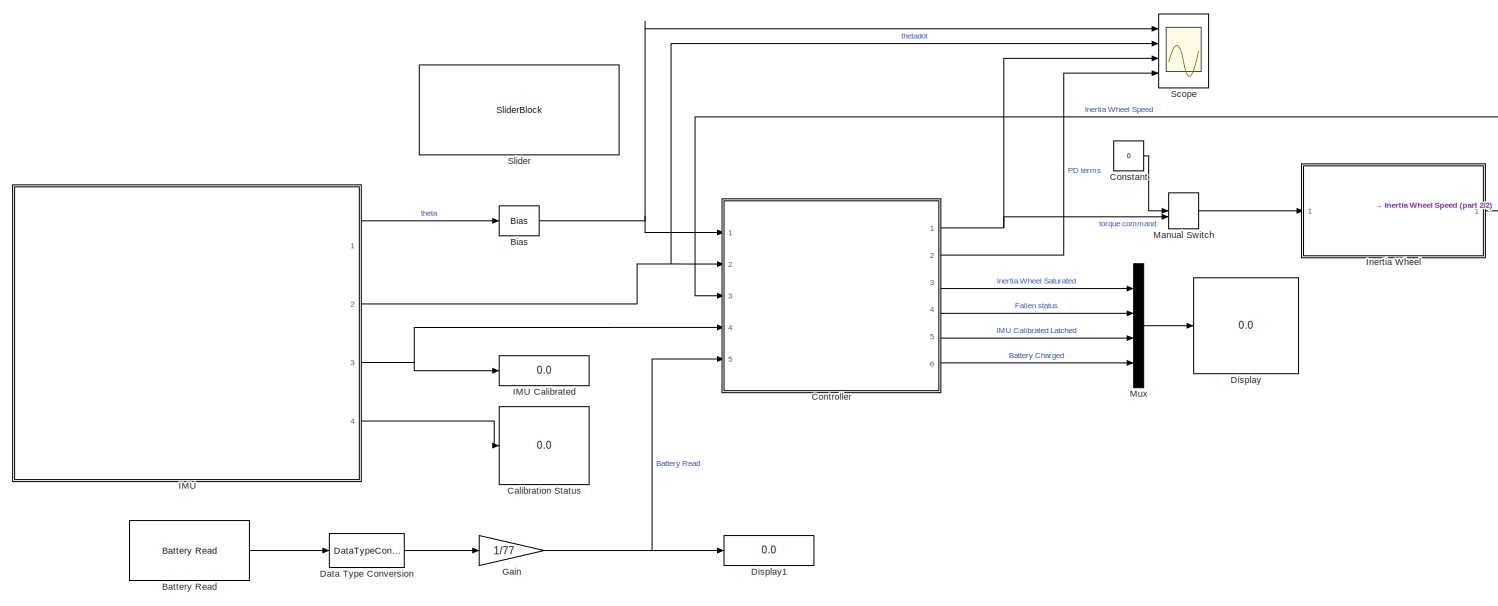
[diagram: root canvas - part 1/2, most of the canvas]
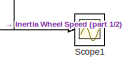
[diagram: root canvas - part 2/2, middle right region]
MODEL slx_b3ffc5ada89b
KIND model
CONFIG AbsTol = auto
CONFIG EnableMultiTasking = on
CONFIG FixedStep = 0.01
CONFIG MaxStep = auto
CONFIG MinStep = auto
CONFIG PreLoadFcn = Ts = 0.01;\nTs_wifi = 0.1;
CONFIG RelTol = 1e-3
CONFIG SampleTimeConstraint = Unconstrained
CONFIG SolverName = FixedStepAuto
CONFIG StartTime = 0.0
CONFIG StopTime = inf
BLOCK [Reference] Battery Read  REF=arduinomotorcarrierlib/Battery Read
  Ports = [0, 1]
  SourceBlock = arduinomotorcarrierlib/Battery Read
  SourceProductBaseCode = ARDUINO
  SourceType = motorcarrier.blocks.mkrmotorcarrier_Battery
BLOCK [Bias] Bias
  Bias = -2
  SaturateOnIntegerOverflow = off
BLOCK [Display] Calibration Status
  Decimation = 1
  Format = long
  Ports = [1]
BLOCK [Constant] Constant
  Value = 0
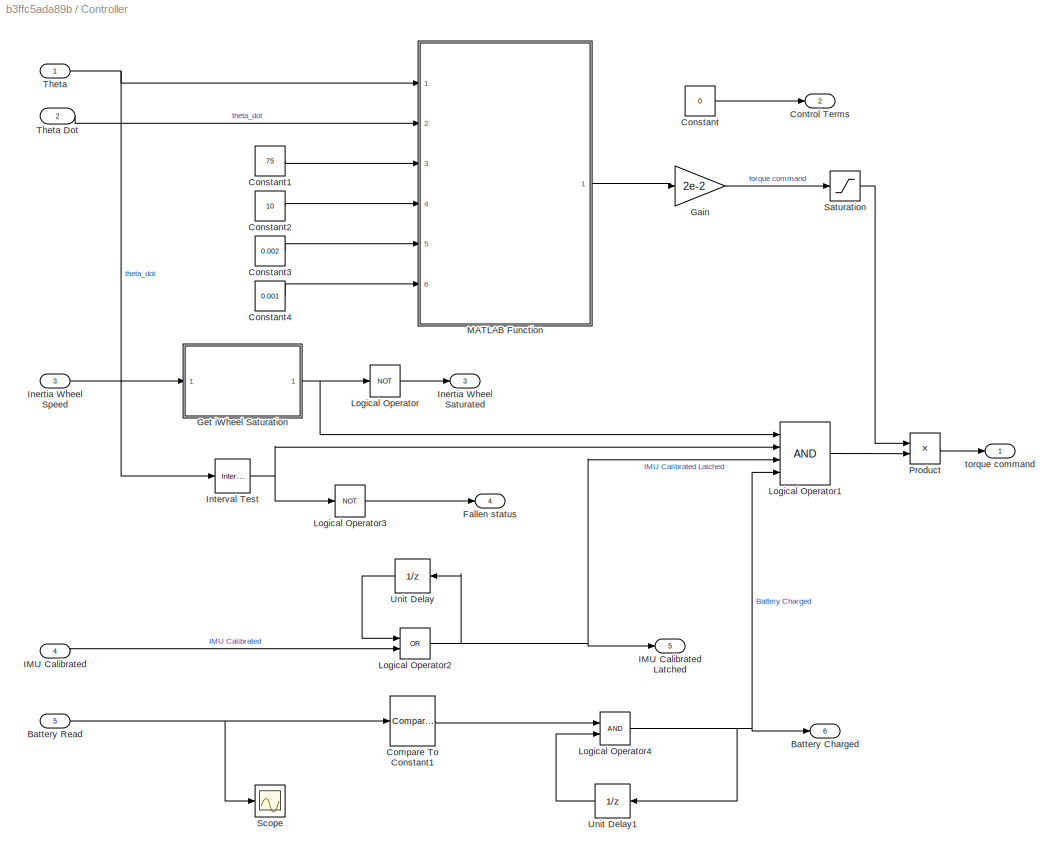
BLOCK [SubSystem] Controller
  Ports = [5, 6]
  RequestExecContextInheritance = off
BLOCK [Outport] Controller/Battery Charged
  Port = 6
  VectorParamsAs1DForOutWhenUnconnected = off
BLOCK [Inport] Controller/Battery Read
  Port = 5
BLOCK [Reference] Controller/Compare To Constant1  REF=simulink/Logic and Bit
Operations/Compare
To Constant
  Ports = [1, 1]
  SourceBlock = simulink/Logic and Bit\nOperations/Compare\nTo Constant
  SourceProductBaseCode = SL
  SourceType = Compare To Constant
BLOCK [Constant] Controller/Constant
  Value = 0
BLOCK [Constant] Controller/Constant1
  Value = 75
BLOCK [Constant] Controller/Constant2
  Value = 10
BLOCK [Constant] Controller/Constant3
  NameLocation = right
  Value = 0.002
BLOCK [Constant] Controller/Constant4
  Value = 0.001
BLOCK [Outport] Controller/Control Terms
  Port = 2
BLOCK [Outport] Controller/Fallen status
  Port = 4
  VectorParamsAs1DForOutWhenUnconnected = off
BLOCK [Gain] Controller/Gain 
  Gain = 2e-2
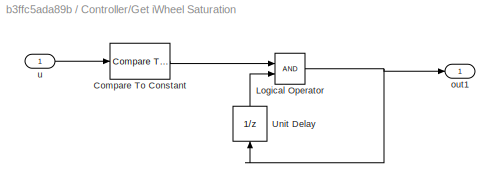
BLOCK [SubSystem] Controller/Get iWheel Saturation
  Ports = [1, 1]
  RequestExecContextInheritance = off
BLOCK [Reference] Controller/Get iWheel Saturation/Compare To Constant  REF=simulink/Logic and Bit
Operations/Compare
To Constant
  Ports = [1, 1]
  SourceBlock = simulink/Logic and Bit\nOperations/Compare\nTo Constant
  SourceProductBaseCode = SL
  SourceType = Compare To Constant
BLOCK [Logic] Controller/Get iWheel Saturation/Logical Operator
  AllPortsSameDT = off
  OutDataTypeStr = boolean
  Ports = [2, 1]
BLOCK [UnitDelay] Controller/Get iWheel Saturation/Unit Delay
  HasFrameUpgradeWarning = on
  InitialCondition = 1
  NameLocation = right
  SampleTime = -1
BLOCK [Outport] Controller/Get iWheel Saturation/out1
BLOCK [Inport] Controller/Get iWheel Saturation/u
BLOCK [Inport] Controller/IMU Calibrated
  Port = 4
BLOCK [Outport] Controller/IMU Calibrated Latched
  Port = 5
  VectorParamsAs1DForOutWhenUnconnected = off
BLOCK [Outport] Controller/Inertia Wheel Saturated
  Port = 3
  VectorParamsAs1DForOutWhenUnconnected = off
BLOCK [Inport] Controller/Inertia Wheel Speed
  Port = 3
BLOCK [Reference] Controller/Interval Test  REF=simulink/Logic and Bit
Operations/Interval Test
  Ports = [1, 1]
  SourceBlock = simulink/Logic and Bit\nOperations/Interval Test
  SourceProductBaseCode = SL
  SourceType = Interval Test
BLOCK [Logic] Controller/Logical Operator
  AllPortsSameDT = off
  Operator = NOT
  OutDataTypeStr = boolean
  Ports = [1, 1]
BLOCK [Logic] Controller/Logical Operator1
  AllPortsSameDT = off
  Inputs = 4
  OutDataTypeStr = boolean
  Ports = [4, 1]
BLOCK [Logic] Controller/Logical Operator2
  AllPortsSameDT = off
  Operator = OR
  OutDataTypeStr = boolean
  Ports = [2, 1]
BLOCK [Logic] Controller/Logical Operator3
  AllPortsSameDT = off
  Operator = NOT
  OutDataTypeStr = boolean
  Ports = [1, 1]
BLOCK [Logic] Controller/Logical Operator4
  AllPortsSameDT = off
  OutDataTypeStr = boolean
  Ports = [2, 1]
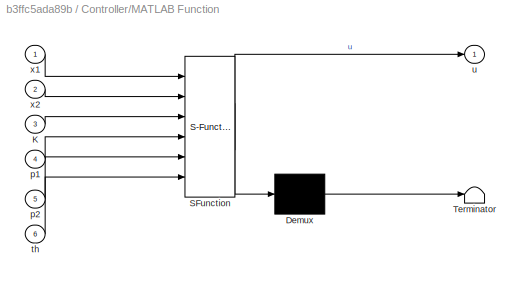
BLOCK [SubSystem] Controller/MATLAB Function
  ErrorFcn = Stateflow.Translate.translate
  PermitHierarchicalResolution = ExplicitOnly
  Ports = [6, 1]
  RequestExecContextInheritance = off
  SFBlockType = MATLAB Function
  TreatAsAtomicUnit = on
BLOCK [Demux] Controller/MATLAB Function/ Demux 
  Outputs = 1
  Ports = [1, 1]
BLOCK [S-Function] Controller/MATLAB Function/ SFunction 
  EnableBusSupport = on
  FunctionName = sf_sfun
  PortCounts = [6 2]
  Ports = [6, 2]
  SFcnIsStateOwnerBlock = off
  SFunctionDeploymentMode = off
  Tag = Stateflow S-Function 2
BLOCK [Terminator] Controller/MATLAB Function/ Terminator 
BLOCK [Inport] Controller/MATLAB Function/K
  Port = 3
BLOCK [Inport] Controller/MATLAB Function/p1
  Port = 4
BLOCK [Inport] Controller/MATLAB Function/p2
  Port = 5
BLOCK [Inport] Controller/MATLAB Function/th
  Port = 6
BLOCK [Outport] Controller/MATLAB Function/u
BLOCK [Inport] Controller/MATLAB Function/x1
BLOCK [Inport] Controller/MATLAB Function/x2
  Port = 2
BLOCK [Product] Controller/Product
  Ports = [2, 1]
BLOCK [Saturate] Controller/Saturation
  LowerLimit = -0.7
  UpperLimit = 0.7
BLOCK [Scope] Controller/Scope
  Floating = off
  NumInputPorts = 1
  Ports = [1]
  ScopeSpecificationString = Simulink.scopes.TimeScopeBlockCfg('CurrentConfiguration', extmgr.ConfigurationSet(extmgr.Configuration('Core','General UI',true),extmgr.Configuration('Core','Source UI',true),extmgr.Configuration('Sources','WiredSimulink',true,'DataLoggingVariableName','ScopeData1'),extmgr.Configuration('Visuals','Time Domain',true,'SerializedDisplays',{struct('MinYLimReal','8.53734','MaxYLimReal','12.51461','YLab...<+1483ch>
BLOCK [Inport] Controller/Theta
BLOCK [Inport] Controller/Theta Dot
  Port = 2
BLOCK [UnitDelay] Controller/Unit Delay
  HasFrameUpgradeWarning = on
  NameLocation = top
  SampleTime = -1
BLOCK [UnitDelay] Controller/Unit Delay1
  HasFrameUpgradeWarning = on
  InitialCondition = 1
  NameLocation = top
  SampleTime = -1
BLOCK [Outport] Controller/torque command
  VectorParamsAs1DForOutWhenUnconnected = off
BLOCK [DataTypeConversion] Data Type Conversion
  RndMeth = Floor
  SaturateOnIntegerOverflow = off
BLOCK [Display] Display
  Decimation = 1
  Ports = [1]
BLOCK [Display] Display1
  Decimation = 1
  Ports = [1]
BLOCK [Gain] Gain
  Gain = 1/77
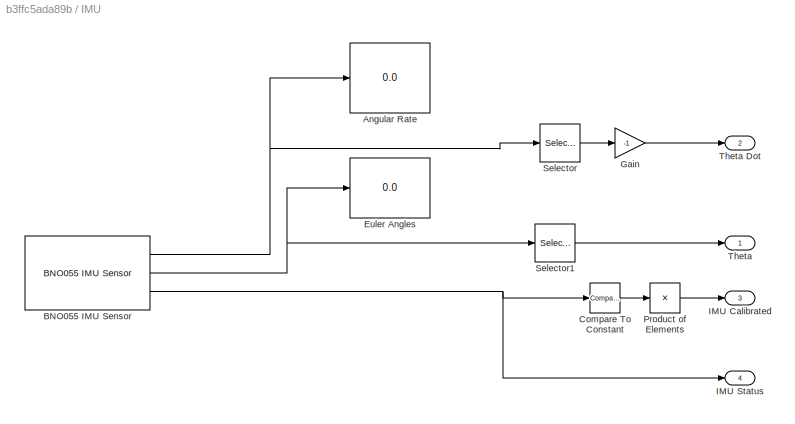
BLOCK [SubSystem] IMU
  Ports = [0, 4]
  RequestExecContextInheritance = off
BLOCK [Display] IMU Calibrated
  Decimation = 1
  Ports = [1]
BLOCK [Display] IMU/Angular Rate
  Decimation = 1
  Ports = [1]
BLOCK [Reference] IMU/BNO055 IMU Sensor  REF=arduinosensorlib/BNO055 IMU Sensor
  Ports = [0, 3]
  SourceBlock = arduinosensorlib/BNO055 IMU Sensor
  SourceProductBaseCode = ARDUINO
  SourceType = Arduino BNO055
BLOCK [Reference] IMU/Compare To Constant  REF=simulink/Logic and Bit
Operations/Compare
To Constant
  Ports = [1, 1]
  SourceBlock = simulink/Logic and Bit\nOperations/Compare\nTo Constant
  SourceProductBaseCode = SL
  SourceType = Compare To Constant
BLOCK [Display] IMU/Euler Angles
  Decimation = 1
  Ports = [1]
BLOCK [Gain] IMU/Gain
  Gain = -1
BLOCK [Outport] IMU/IMU Calibrated
  Port = 3
BLOCK [Outport] IMU/IMU Status
  Port = 4
BLOCK [Product] IMU/Product of Elements
  Inputs = *
  Ports = [1, 1]
BLOCK [Selector] IMU/Selector
  IndexOptions = Index vector (dialog)
  Indices = 2
  InputPortWidth = 3
  OutputSizes = 1
  Ports = [1, 1]
BLOCK [Selector] IMU/Selector1
  IndexOptions = Index vector (dialog)
  Indices = 2
  InputPortWidth = 3
  OutputSizes = 1
  Ports = [1, 1]
BLOCK [Outport] IMU/Theta
BLOCK [Outport] IMU/Theta Dot
  Port = 2
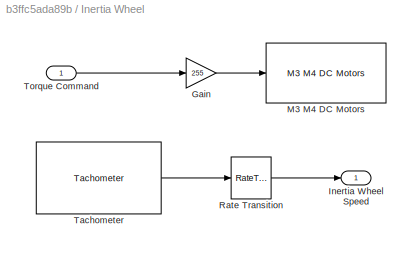
BLOCK [SubSystem] Inertia Wheel
  Ports = [1, 1]
  RequestExecContextInheritance = off
BLOCK [Gain] Inertia Wheel/Gain
  Gain = 255
BLOCK [Outport] Inertia Wheel/Inertia Wheel Speed
BLOCK [Reference] Inertia Wheel/M3 M4 DC Motors  REF=arduinomotorcarrierlib/M3 M4 DC Motors
  Ports = [1]
  SourceBlock = arduinomotorcarrierlib/M3 M4 DC Motors
  SourceProductBaseCode = ARDUINO
  SourceType = DC Motor
BLOCK [RateTransition] Inertia Wheel/Rate Transition
BLOCK [Reference] Inertia Wheel/Tachometer  REF=arduinosensorlib/Tachometer
  Ports = [0, 1]
  SourceBlock = arduinosensorlib/Tachometer
  SourceProductBaseCode = ARDUINO
  SourceType = Arduino Tachometer
BLOCK [Inport] Inertia Wheel/Torque Command
BLOCK [ManualSwitch] Manual Switch
BLOCK [Mux] Mux
  DisplayOption = bar
  Ports = [4, 1]
BLOCK [Scope] Scope
  Floating = off
  NumInputPorts = 4
  Ports = [4]
  ScopeSpecificationString = Simulink.scopes.TimeScopeBlockCfg('CurrentConfiguration', extmgr.ConfigurationSet(extmgr.Configuration('Core','General UI',true),extmgr.Configuration('Core','Source UI',true),extmgr.Configuration('Sources','WiredSimulink',true),extmgr.Configuration('Visuals','Time Domain',true,'SerializedDisplays',{struct('MinYLimReal','-15.54687','MaxYLimReal','63.67188','YLabelReal','','MinYLimMag','0.00000','Ma...<+3415ch>
BLOCK [Scope] Scope1
  Floating = off
  NumInputPorts = 1
  Ports = [1]
  ScopeSpecificationString = Simulink.scopes.TimeScopeBlockCfg('CurrentConfiguration', extmgr.ConfigurationSet(extmgr.Configuration('Core','General UI',true),extmgr.Configuration('Core','Source UI',true),extmgr.Configuration('Sources','WiredSimulink',true,'DataLoggingVariableName','ScopeData1'),extmgr.Configuration('Visuals','Time Domain',true,'SerializedDisplays',{struct('MinYLimReal','-1.00000','MaxYLimReal','1.00000','YLab...<+2720ch>
BLOCK [SliderBlock] Slider
  ScaleMax = 5
  ScaleMin = -5
LINE Battery Read:1 -> Data Type Conversion:1
NET Bias:1 -> Controller:1, Scope:1
LINE Constant:1 -> Manual Switch:1
NET Controller/Battery Read:1 -> Controller/Compare To Constant1:1, Controller/Scope:1
LINE Controller/Compare To Constant1:1 -> Controller/Logical Operator4:1
LINE Controller/Constant1:1 -> Controller/MATLAB Function:3
LINE Controller/Constant2:1 -> Controller/MATLAB Function:4
LINE Controller/Constant3:1 -> Controller/MATLAB Function:5
LINE Controller/Constant4:1 -> Controller/MATLAB Function:6
LINE Controller/Constant:1 -> Controller/Control Terms:1
LINE Controller/Gain :1 -> Controller/Saturation:1
LINE Controller/Get iWheel Saturation/Compare To Constant:1 -> Controller/Get iWheel Saturation/Logical Operator:1
NET Controller/Get iWheel Saturation/Logical Operator:1 -> Controller/Get iWheel Saturation/Unit Delay:1, Controller/Get iWheel Saturation/out1:1
LINE Controller/Get iWheel Saturation/Unit Delay:1 -> Controller/Get iWheel Saturation/Logical Operator:2
LINE Controller/Get iWheel Saturation/u:1 -> Controller/Get iWheel Saturation/Compare To Constant:1
NET Controller/Get iWheel Saturation:1 -> Controller/Logical Operator1:1, Controller/Logical Operator:1
LINE Controller/IMU Calibrated:1 -> Controller/Logical Operator2:2
LINE Controller/Inertia Wheel Speed:1 -> Controller/Get iWheel Saturation:1
NET Controller/Interval Test:1 -> Controller/Logical Operator1:2, Controller/Logical Operator3:1
LINE Controller/Logical Operator1:1 -> Controller/Product:2
NET Controller/Logical Operator2:1 -> Controller/IMU Calibrated Latched:1, Controller/Logical Operator1:3, Controller/Unit Delay:1
LINE Controller/Logical Operator3:1 -> Controller/Fallen status:1
NET Controller/Logical Operator4:1 -> Controller/Battery Charged:1, Controller/Logical Operator1:4, Controller/Unit Delay1:1
LINE Controller/Logical Operator:1 -> Controller/Inertia Wheel Saturated:1
LINE Controller/MATLAB Function:1 -> Controller/Gain :1
LINE Controller/Product:1 -> Controller/torque command:1
LINE Controller/Saturation:1 -> Controller/Product:1
LINE Controller/Theta Dot:1 -> Controller/MATLAB Function:2
NET Controller/Theta:1 -> Controller/Interval Test:1, Controller/MATLAB Function:1
LINE Controller/Unit Delay1:1 -> Controller/Logical Operator4:2
LINE Controller/Unit Delay:1 -> Controller/Logical Operator2:1
NET Controller:1 -> Manual Switch:2, Scope:3
LINE Controller:2 -> Scope:4
LINE Controller:3 -> Mux:1
LINE Controller:4 -> Mux:2
LINE Controller:5 -> Mux:3
LINE Controller:6 -> Mux:4
LINE Data Type Conversion:1 -> Gain:1
NET Gain:1 -> Controller:5, Display1:1
NET IMU/BNO055 IMU Sensor:1 -> IMU/Angular Rate:1, IMU/Selector:1
NET IMU/BNO055 IMU Sensor:2 -> IMU/Euler Angles:1, IMU/Selector1:1
NET IMU/BNO055 IMU Sensor:3 -> IMU/Compare To Constant:1, IMU/IMU Status:1
LINE IMU/Compare To Constant:1 -> IMU/Product of Elements:1
LINE IMU/Gain:1 -> IMU/Theta Dot:1
LINE IMU/Product of Elements:1 -> IMU/IMU Calibrated:1
LINE IMU/Selector1:1 -> IMU/Theta:1
LINE IMU/Selector:1 -> IMU/Gain:1
LINE IMU:1 -> Bias:1
NET IMU:2 -> Controller:2, Scope:2
NET IMU:3 -> Controller:4, IMU Calibrated:1
LINE IMU:4 -> Calibration Status:1
LINE Inertia Wheel/Gain:1 -> Inertia Wheel/M3 M4 DC Motors:1
LINE Inertia Wheel/Rate Transition:1 -> Inertia Wheel/Inertia Wheel Speed:1
LINE Inertia Wheel/Tachometer:1 -> Inertia Wheel/Rate Transition:1
LINE Inertia Wheel/Torque Command:1 -> Inertia Wheel/Gain:1
NET Inertia Wheel:1 -> Controller:3, Scope1:1
LINE Manual Switch:1 -> Inertia Wheel:1
LINE Mux:1 -> Display:1
note: NET lines group one-source signal fan-out (src -> all destinations, sorted); 1:1 wires keep LINE
CHART Controller/MATLAB Function states=1 transitions=1
  STATE_LABEL 'eML_blk_kernel()'
  STATE_LABEL 'SCRIPT:\nfunction u = SM(x1,x2,K,p1,p2,th)\nM=0.40;\nh=0.07;\ng=9.81;\nIm=M*h^2;\n\n\nsigma=p1*x1+p2*x2;\n\nif(sigma>th)\n    u =Im/(p2)*(K+p1*x2+p2*M*g*h/Im*sind(x1));\nelseif (sigma<-th)\n    u =Im/(p2)*(-K+p1*x2+p2*M*g*h/Im*sind(x1));\nelse\n    u =Im/(p2)*(p1*x2+p2*M*g*h/Im*sind(x1));\nend\n\n        '
CHART  states=0 transitions=0
